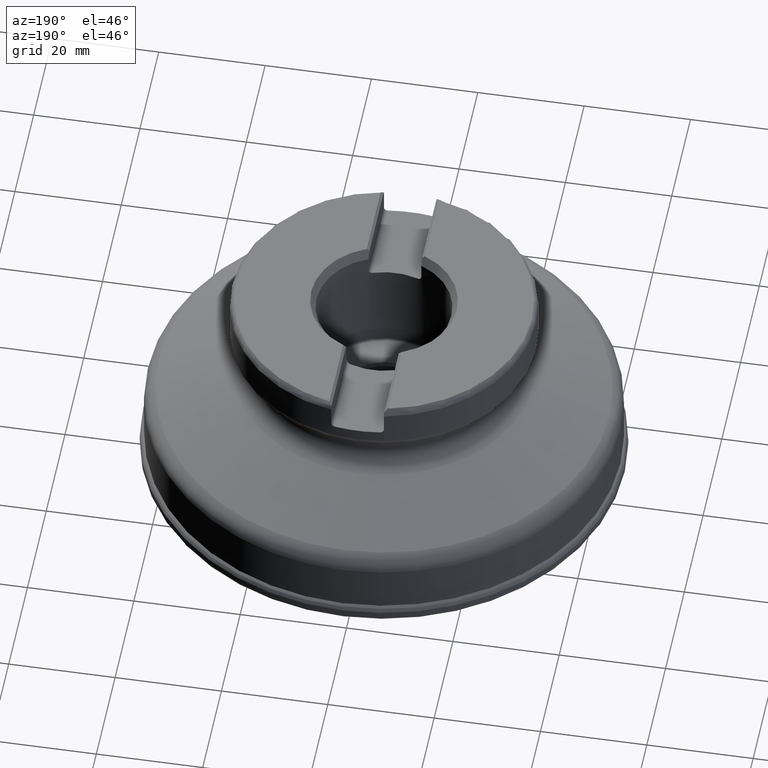
[diagram: clean part render]
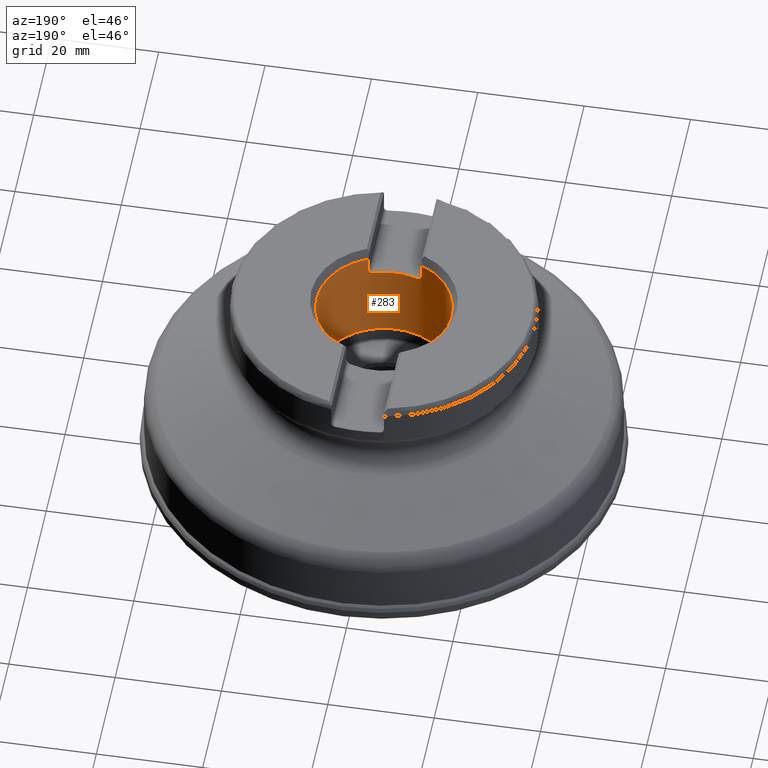
[diagram: same view with one face highlighted and labeled with its STEP entity id]
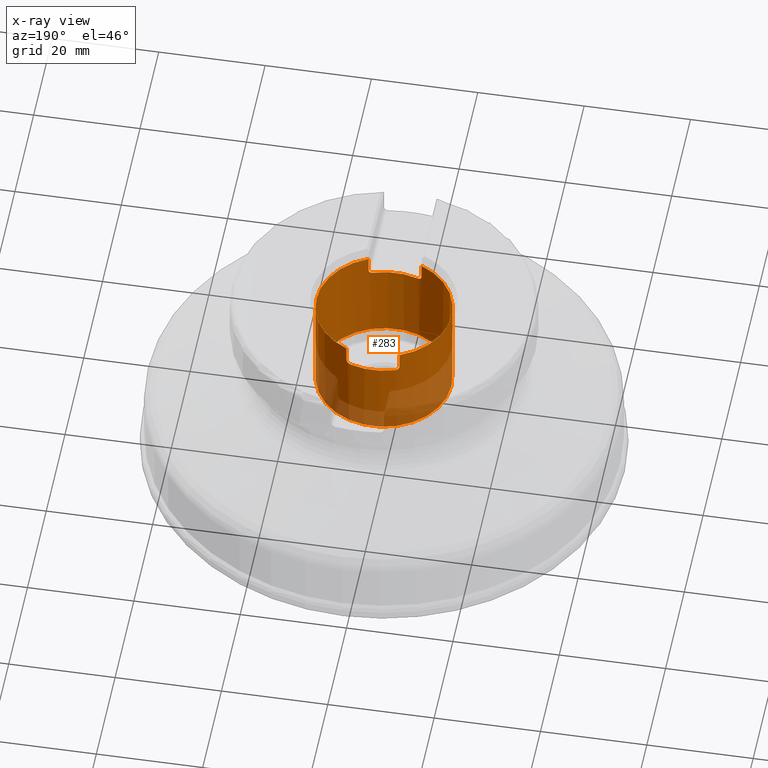
[diagram: x-ray of the same camera — body ghosted, the highlighted face saturated]
A machine part, auxiliary view. The second image highlights one B-rep face of the part: STEP entity #283.
The next image is the same camera in x-ray: the body ghosted, the highlighted face saturated — about 23% of this face is hidden behind the body in this view.
In plain terms, the highlighted cylindrical surface (bore or boss wall) has radius 12.7 mm, axis along (-0, 0, -1).
Its self-contained STEP definition (entity closure, byte-faithful):
#200=CYLINDRICAL_SURFACE('',#1095,12.7);
#213=LINE('',#1744,#249);
#214=LINE('',#1783,#250);
#215=LINE('',#1787,#251);
#216=LINE('',#1825,#252);
#249=VECTOR('',#1214,1.);
#250=VECTOR('',#1217,1.);
#251=VECTOR('',#1220,1.);
#252=VECTOR('',#1223,1.);
#283=ADVANCED_FACE('',(#365,#366),#200,.F.);
#365=FACE_BOUND('',#459,.T.);
#366=FACE_BOUND('',#460,.T.);
#459=EDGE_LOOP('',(#584));
#460=EDGE_LOOP('',(#585,#586,#587,#588,#589,#590,#591,#592,#593,#594,#595,
#596));
#584=ORIENTED_EDGE('',*,*,#882,.T.);
#585=ORIENTED_EDGE('',*,*,#883,.T.);
#586=ORIENTED_EDGE('',*,*,#884,.T.);
#587=ORIENTED_EDGE('',*,*,#885,.T.);
#588=ORIENTED_EDGE('',*,*,#886,.T.);
#589=ORIENTED_EDGE('',*,*,#887,.T.);
#590=ORIENTED_EDGE('',*,*,#888,.T.);
#591=ORIENTED_EDGE('',*,*,#889,.T.);
#592=ORIENTED_EDGE('',*,*,#890,.T.);
#593=ORIENTED_EDGE('',*,*,#891,.T.);
#594=ORIENTED_EDGE('',*,*,#892,.T.);
#595=ORIENTED_EDGE('',*,*,#893,.T.);
#596=ORIENTED_EDGE('',*,*,#894,.T.);
#796=VERTEX_POINT('',#1743);
#797=VERTEX_POINT('',#1745);
#798=VERTEX_POINT('',#1746);
#799=VERTEX_POINT('',#1763);
#800=VERTEX_POINT('',#1765);
#801=VERTEX_POINT('',#1782);
#802=VERTEX_POINT('',#1784);
#803=VERTEX_POINT('',#1786);
#804=VERTEX_POINT('',#1788);
#805=VERTEX_POINT('',#1805);
#806=VERTEX_POINT('',#1807);
#807=VERTEX_POINT('',#1824);
#808=VERTEX_POINT('',#1826);
#882=EDGE_CURVE('',#796,#796,#980,.T.);
#883=EDGE_CURVE('',#797,#798,#213,.T.);
#884=EDGE_CURVE('',#798,#799,#1055,.T.);
#885=EDGE_CURVE('',#799,#800,#981,.T.);
#886=EDGE_CURVE('',#800,#801,#1056,.T.);
#887=EDGE_CURVE('',#801,#802,#214,.T.);
#888=EDGE_CURVE('',#802,#803,#982,.T.);
#889=EDGE_CURVE('',#803,#804,#215,.T.);
#890=EDGE_CURVE('',#804,#805,#1057,.T.);
#891=EDGE_CURVE('',#805,#806,#983,.T.);
#892=EDGE_CURVE('',#806,#807,#1058,.T.);
#893=EDGE_CURVE('',#807,#808,#216,.T.);
#894=EDGE_CURVE('',#808,#797,#984,.T.);
#980=CIRCLE('',#1090,12.7);
#981=CIRCLE('',#1091,12.7);
#982=CIRCLE('',#1092,12.7);
#983=CIRCLE('',#1093,12.7);
#984=CIRCLE('',#1094,12.7);
#1055=B_SPLINE_CURVE_WITH_KNOTS('',3,(#1747,#1748,#1749,#1750,#1751,#1752,
#1753,#1754,#1755,#1756,#1757,#1758,#1759,#1760,#1761,#1762),
 .UNSPECIFIED.,.F.,.F.,(4,3,3,3,3,4),(0.,0.196000607134339,0.391529336199021,
0.594178176820764,0.812034602597941,1.),.UNSPECIFIED.);
#1056=B_SPLINE_CURVE_WITH_KNOTS('',3,(#1766,#1767,#1768,#1769,#1770,#1771,
#1772,#1773,#1774,#1775,#1776,#1777,#1778,#1779,#1780,#1781),
 .UNSPECIFIED.,.F.,.F.,(4,3,3,3,3,4),(0.,0.232768787004721,0.465745552936074,
0.694481301047643,0.90802433613181,1.),.UNSPECIFIED.);
#1057=B_SPLINE_CURVE_WITH_KNOTS('',3,(#1789,#1790,#1791,#1792,#1793,#1794,
#1795,#1796,#1797,#1798,#1799,#1800,#1801,#1802,#1803,#1804),
 .UNSPECIFIED.,.F.,.F.,(4,3,3,3,3,4),(0.,0.196000607134339,0.39152933619902,
0.594178176820764,0.812034602597941,1.),.UNSPECIFIED.);
#1058=B_SPLINE_CURVE_WITH_KNOTS('',3,(#1808,#1809,#1810,#1811,#1812,#1813,
#1814,#1815,#1816,#1817,#1818,#1819,#1820,#1821,#1822,#1823),
 .UNSPECIFIED.,.F.,.F.,(4,3,3,3,3,4),(0.,0.232768787004721,0.465745552936073,
0.694481301047643,0.90802433613181,1.),.UNSPECIFIED.);
#1090=AXIS2_PLACEMENT_3D('',#1742,#1212,#1213);
#1091=AXIS2_PLACEMENT_3D('',#1764,#1215,#1216);
#1092=AXIS2_PLACEMENT_3D('',#1785,#1218,#1219);
#1093=AXIS2_PLACEMENT_3D('',#1806,#1221,#1222);
#1094=AXIS2_PLACEMENT_3D('',#1827,#1224,#1225);
#1095=AXIS2_PLACEMENT_3D('',#1828,#1226,#1227);
#1212=DIRECTION('',(-1.17145536458252E-15,0.,-1.));
#1213=DIRECTION('',(-1.,0.,1.0927391974657E-15));
#1214=DIRECTION('',(-1.17145536458252E-15,0.,-1.));
#1215=DIRECTION('',(1.17145536458252E-15,0.,1.));
#1216=DIRECTION('',(1.,0.,-1.09273919746571E-15));
#1217=DIRECTION('',(1.17145536458252E-15,0.,1.));
#1218=DIRECTION('',(1.17145536458252E-15,0.,1.));
#1219=DIRECTION('',(-1.,0.,1.09273919746571E-15));
#1220=DIRECTION('',(-1.17145536458252E-15,0.,-1.));
#1221=DIRECTION('',(1.17145536458252E-15,0.,1.));
#1222=DIRECTION('',(1.,0.,-1.09273919746571E-15));
#1223=DIRECTION('',(1.17145536458252E-15,0.,1.));
#1224=DIRECTION('',(1.17145536458252E-15,0.,1.));
#1225=DIRECTION('',(-1.,0.,1.09273919746571E-15));
#1226=DIRECTION('',(-1.17145536458252E-15,0.,-1.));
#1227=DIRECTION('',(-1.,0.,1.17145536458252E-15));
#1742=CARTESIAN_POINT('',(2.80563559817514E-14,0.,23.95));
#1743=CARTESIAN_POINT('',(-12.7,0.,23.95));
#1744=CARTESIAN_POINT('',(4.96570000000001,11.6889616095699,-4.74033135832519E-15));
#1745=CARTESIAN_POINT('',(4.96570000000005,11.6889616095699,42.7179491924311));
#1746=CARTESIAN_POINT('',(4.96570000000006,11.6889616095699,39.6874));
#1747=CARTESIAN_POINT('',(4.96570000000006,11.6889616095699,39.6874));
#1748=CARTESIAN_POINT('',(4.96570000000006,11.6889616095699,39.6028680175705));
#1749=CARTESIAN_POINT('',(4.95185958860509,11.6948660982569,39.5171723678552));
#1750=CARTESIAN_POINT('',(4.92568458399856,11.7058802052199,39.4375531827607));
#1751=CARTESIAN_POINT('',(4.89954500542997,11.7168794053595,39.3580417566643));
#1752=CARTESIAN_POINT('',(4.86049945833481,11.7332124259148,39.2824453656553));
#1753=CARTESIAN_POINT('',(4.81215659492437,11.7530059519225,39.2161316360301));
#1754=CARTESIAN_POINT('',(4.76203727893391,11.773526829557,39.1473810793787));
#1755=CARTESIAN_POINT('',(4.70071940710328,11.7982423696436,39.0868082456689));
#1756=CARTESIAN_POINT('',(4.63302533629125,11.8247653775153,39.038087263285));
#1757=CARTESIAN_POINT('',(4.5603161855054,11.8532533286091,38.9857568123002));
#1758=CARTESIAN_POINT('',(4.47839641303869,11.8845347267942,38.9457287303459));
#1759=CARTESIAN_POINT('',(4.39343310575093,11.9158610912217,38.9204986813513));
#1760=CARTESIAN_POINT('',(4.31988077951239,11.9429801741506,38.8986571493547));
#1761=CARTESIAN_POINT('',(4.24257612685177,11.9706796068453,38.8874));
#1762=CARTESIAN_POINT('',(4.16570000000005,11.9973723585625,38.8874));
#1763=CARTESIAN_POINT('',(4.16570000000005,11.9973723585625,38.8874));
#1764=CARTESIAN_POINT('',(4.55548533446665E-14,0.,38.8874));
#1765=CARTESIAN_POINT('',(-4.16569999999995,11.9973723585625,38.8874));
#1766=CARTESIAN_POINT('',(-4.16569999999995,11.9973723585625,38.8874));
#1767=CARTESIAN_POINT('',(-4.26054082397937,11.9644419460819,38.8874));
#1768=CARTESIAN_POINT('',(-4.35626853739123,11.9298746338057,38.9046725795823));
#1769=CARTESIAN_POINT('',(-4.44505894421029,11.8966991633182,38.9377610333703));
#1770=CARTESIAN_POINT('',(-4.53388781534927,11.8635093210989,38.9708638211941));
#1771=CARTESIAN_POINT('',(-4.61833286165822,11.8307692151276,39.0207821250051));
#1772=CARTESIAN_POINT('',(-4.69090429449157,11.80192428801,39.0839429186367));
#1773=CARTESIAN_POINT('',(-4.76209231859711,11.7736292235914,39.1458996958977));
#1774=CARTESIAN_POINT('',(-4.82395887359023,11.7482717371733,39.222599660144));
#1775=CARTESIAN_POINT('',(-4.86984065047055,11.72922214126,39.307681756621));
#1776=CARTESIAN_POINT('',(-4.91269887231692,11.7114278912713,39.3871570431923));
#1777=CARTESIAN_POINT('',(-4.9428295620874,11.69866062509,39.4764373709904));
#1778=CARTESIAN_POINT('',(-4.95662464447711,11.6928128409618,39.5672409106281));
#1779=CARTESIAN_POINT('',(-4.96264858105047,11.690259272981,39.6068923420557));
#1780=CARTESIAN_POINT('',(-4.96569999999995,11.6889616095699,39.6472123833062));
#1781=CARTESIAN_POINT('',(-4.96569999999995,11.6889616095699,39.6874));
#1782=CARTESIAN_POINT('',(-4.96569999999995,11.6889616095699,39.6874));
#1783=CARTESIAN_POINT('',(-4.96569999999999,11.6889616095699,5.09925287351927E-15));
#1784=CARTESIAN_POINT('',(-4.96569999999995,11.6889616095699,42.7179491924311));
#1785=CARTESIAN_POINT('',(5.00421707454371E-14,0.,42.7179491924311));
#1786=CARTESIAN_POINT('',(-4.96569999999995,-11.6889616095699,42.7179491924311));
#1787=CARTESIAN_POINT('',(-4.96569999999999,-11.6889616095699,5.09925287351927E-15));
#1788=CARTESIAN_POINT('',(-4.96569999999995,-11.6889616095699,39.6874));
#1789=CARTESIAN_POINT('',(-4.96569999999995,-11.6889616095699,39.6874));
#1790=CARTESIAN_POINT('',(-4.96569999999995,-11.6889616095699,39.6028680175705));
#1791=CARTESIAN_POINT('',(-4.951859588605,-11.6948660982569,39.5171723678552));
#1792=CARTESIAN_POINT('',(-4.92568458399847,-11.7058802052199,39.4375531827607));
#1793=CARTESIAN_POINT('',(-4.89954500542987,-11.7168794053595,39.3580417566643));
#1794=CARTESIAN_POINT('',(-4.86049945833472,-11.7332124259148,39.2824453656553));
#1795=CARTESIAN_POINT('',(-4.81215659492428,-11.7530059519225,39.2161316360301));
#1796=CARTESIAN_POINT('',(-4.76203727893382,-11.773526829557,39.1473810793787));
#1797=CARTESIAN_POINT('',(-4.70071940710318,-11.7982423696436,39.0868082456689));
#1798=CARTESIAN_POINT('',(-4.63302533629116,-11.8247653775153,39.038087263285));
#1799=CARTESIAN_POINT('',(-4.56031618550531,-11.8532533286091,38.9857568123003));
#1800=CARTESIAN_POINT('',(-4.4783964130386,-11.8845347267942,38.9457287303459));
#1801=CARTESIAN_POINT('',(-4.39343310575084,-11.9158610912217,38.9204986813513));
#1802=CARTESIAN_POINT('',(-4.3198807795123,-11.9429801741506,38.8986571493547));
#1803=CARTESIAN_POINT('',(-4.24257612685168,-11.9706796068453,38.8874));
#1804=CARTESIAN_POINT('',(-4.16569999999995,-11.9973723585625,38.8874));
#1805=CARTESIAN_POINT('',(-4.16569999999995,-11.9973723585625,38.8874));
#1806=CARTESIAN_POINT('',(4.55548533446665E-14,0.,38.8874));
#1807=CARTESIAN_POINT('',(4.16570000000005,-11.9973723585625,38.8874));
#1808=CARTESIAN_POINT('',(4.16570000000005,-11.9973723585625,38.8874));
#1809=CARTESIAN_POINT('',(4.26054082397946,-11.9644419460819,38.8874));
#1810=CARTESIAN_POINT('',(4.35626853739132,-11.9298746338057,38.9046725795823));
#1811=CARTESIAN_POINT('',(4.44505894421038,-11.8966991633182,38.9377610333703));
#1812=CARTESIAN_POINT('',(4.53388781534936,-11.8635093210989,38.970863821194));
#1813=CARTESIAN_POINT('',(4.61833286165832,-11.8307692151276,39.0207821250051));
#1814=CARTESIAN_POINT('',(4.69090429449166,-11.80192428801,39.0839429186367));
#1815=CARTESIAN_POINT('',(4.7620923185972,-11.7736292235914,39.1458996958977));
#1816=CARTESIAN_POINT('',(4.82395887359032,-11.7482717371733,39.222599660144));
#1817=CARTESIAN_POINT('',(4.86984065047064,-11.72922214126,39.307681756621));
#1818=CARTESIAN_POINT('',(4.91269887231701,-11.7114278912713,39.3871570431923));
#1819=CARTESIAN_POINT('',(4.94282956208749,-11.69866062509,39.4764373709904));
#1820=CARTESIAN_POINT('',(4.9566246444772,-11.6928128409618,39.5672409106281));
#1821=CARTESIAN_POINT('',(4.96264858105056,-11.690259272981,39.6068923420557));
#1822=CARTESIAN_POINT('',(4.96570000000006,-11.6889616095699,39.6472123833061));
#1823=CARTESIAN_POINT('',(4.96570000000006,-11.6889616095699,39.6874));
#1824=CARTESIAN_POINT('',(4.96570000000006,-11.6889616095699,39.6874));
#1825=CARTESIAN_POINT('',(4.96570000000001,-11.6889616095699,-4.74033135832519E-15));
#1826=CARTESIAN_POINT('',(4.96570000000005,-11.6889616095699,42.7179491924311));
#1827=CARTESIAN_POINT('',(5.00421707454371E-14,0.,42.7179491924311));
#1828=CARTESIAN_POINT('',(0.,0.,0.));